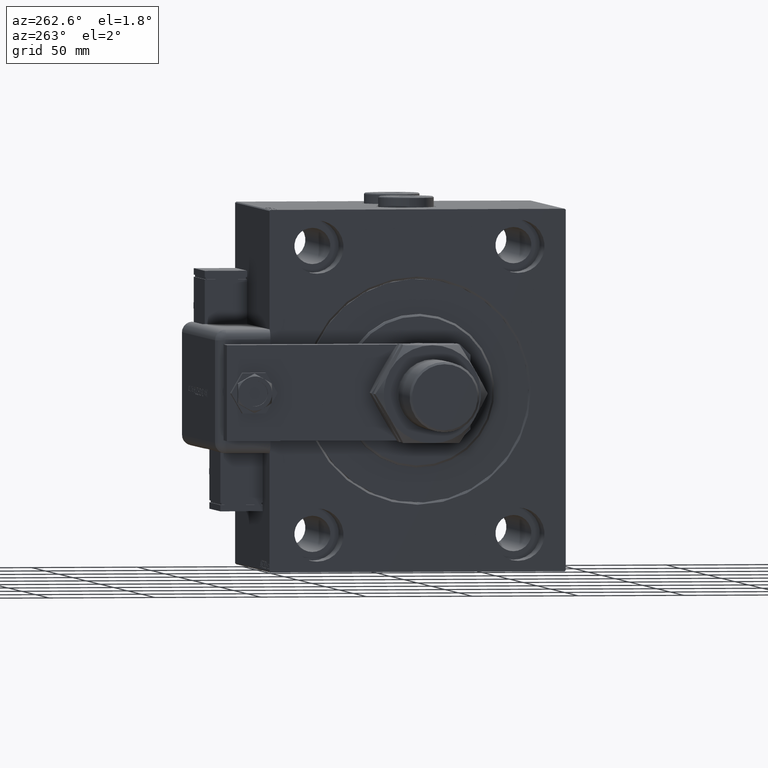
[diagram: clean part render]
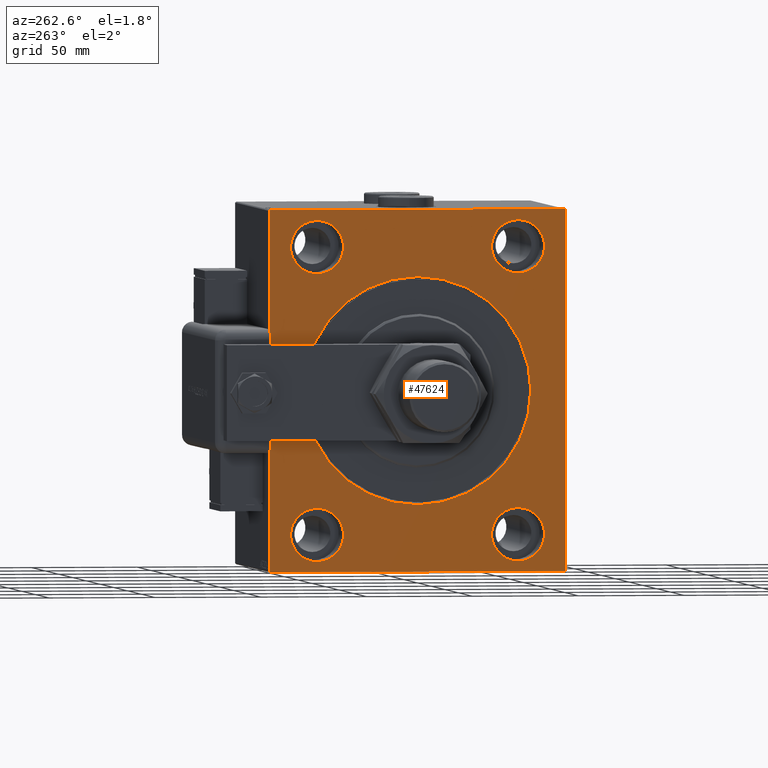
[diagram: same view with one face highlighted and labeled with its STEP entity id]
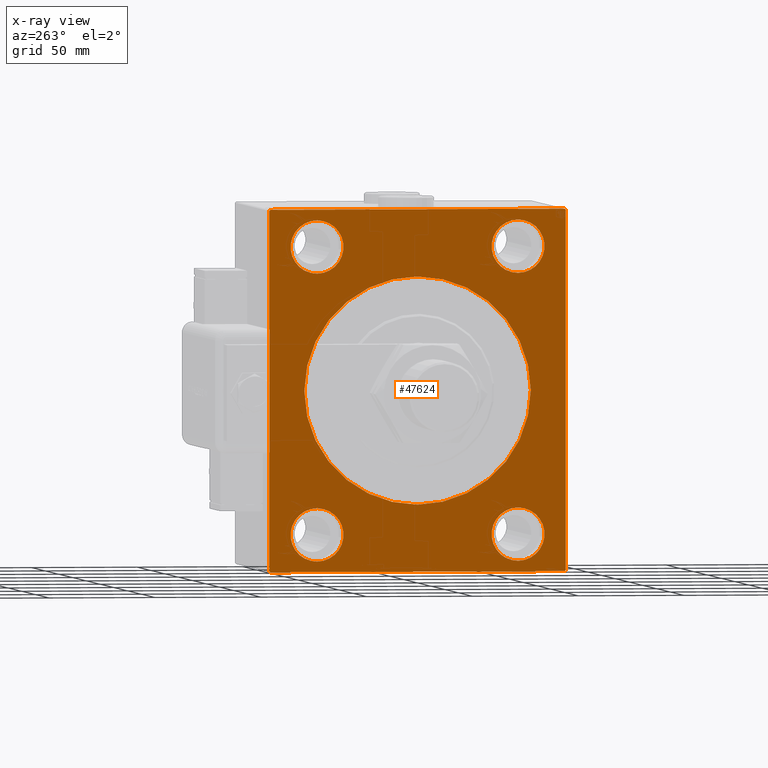
[diagram: x-ray of the same camera — body ghosted, the highlighted face saturated]
A machine part, auxiliary view. The second image highlights one B-rep face of the part: STEP entity #47624.
The next image is the same camera in x-ray: the body ghosted, the highlighted face saturated — about 0% of this face is hidden behind the body in this view.
In plain terms, the highlighted planar face has unit normal (1, 0, 0).
Its self-contained STEP definition (entity closure, byte-faithful):
#74 = ORIENTED_EDGE ( 'NONE', *, *, #38213, .F. ) ;
#1502 = VERTEX_POINT ( 'NONE', #58459 ) ;
#1839 = VERTEX_POINT ( 'NONE', #29563 ) ;
#2432 = DIRECTION ( 'NONE',  ( 0.000000000000000000, 0.000000000000000000, 1.000000000000000000 ) ) ;
#3241 = DIRECTION ( 'NONE',  ( -1.000000000000000000, 0.000000000000000000, 0.000000000000000000 ) ) ;
#3507 = DIRECTION ( 'NONE',  ( -1.000000000000000000, 0.000000000000000000, 0.000000000000000000 ) ) ;
#3883 = CIRCLE ( 'NONE', #12985, 12.49999999999999645 ) ;
#4310 = CIRCLE ( 'NONE', #34600, 12.49999999999999645 ) ;
#4846 = VERTEX_POINT ( 'NONE', #38354 ) ;
#4900 = VECTOR ( 'NONE', #54947, 1000.000000000000000 ) ;
#5613 = DIRECTION ( 'NONE',  ( -1.000000000000000000, 0.000000000000000000, 0.000000000000000000 ) ) ;
#6246 = EDGE_LOOP ( 'NONE', ( #44435, #74 ) ) ;
#6357 = AXIS2_PLACEMENT_3D ( 'NONE', #31415, #50732, #7391 ) ;
#6517 = CARTESIAN_POINT ( 'NONE',  ( 0.000000000000000000, 47.50000000000000711, -55.00000000000000711 ) ) ;
#6749 = FACE_BOUND ( 'NONE', #48213, .T. ) ;
#6808 = CARTESIAN_POINT ( 'NONE',  ( 0.000000000000000000, -47.49999999999997868, 67.50000000000000000 ) ) ;
#6834 = EDGE_CURVE ( 'NONE', #25095, #59235, #36208, .T. ) ;
#7010 = ORIENTED_EDGE ( 'NONE', *, *, #28667, .F. ) ;
#7207 = AXIS2_PLACEMENT_3D ( 'NONE', #18414, #3241, #9242 ) ;
#7391 = DIRECTION ( 'NONE',  ( 0.000000000000000000, 0.000000000000000000, -1.000000000000000000 ) ) ;
#7669 = ORIENTED_EDGE ( 'NONE', *, *, #37261, .F. ) ;
#7737 = DIRECTION ( 'NONE',  ( -1.000000000000000000, 0.000000000000000000, 0.000000000000000000 ) ) ;
#8192 = CARTESIAN_POINT ( 'NONE',  ( 0.000000000000000000, -69.49999999999994316, -85.00000000000002842 ) ) ;
#8467 = VERTEX_POINT ( 'NONE', #6517 ) ;
#8498 = VERTEX_POINT ( 'NONE', #59673 ) ;
#8855 = DIRECTION ( 'NONE',  ( 0.000000000000000000, 0.000000000000000000, -1.000000000000000000 ) ) ;
#8882 = DIRECTION ( 'NONE',  ( 0.000000000000000000, 0.000000000000000000, 1.000000000000000000 ) ) ;
#9242 = DIRECTION ( 'NONE',  ( 0.000000000000000000, 0.000000000000000000, 1.000000000000000000 ) ) ;
#9440 = VECTOR ( 'NONE', #60636, 1000.000000000000000 ) ;
#9757 = CARTESIAN_POINT ( 'NONE',  ( 0.000000000000000000, 0.000000000000000000, 0.000000000000000000 ) ) ;
#9760 = CARTESIAN_POINT ( 'NONE',  ( 0.000000000000000000, -69.99999999999998579, 84.49999999999995737 ) ) ;
#10742 = CARTESIAN_POINT ( 'NONE',  ( 0.000000000000000000, 70.00000000000002842, -85.00000000000001421 ) ) ;
#10941 = EDGE_CURVE ( 'NONE', #49741, #4846, #48939, .T. ) ;
#11497 = FACE_OUTER_BOUND ( 'NONE', #43919, .T. ) ;
#12130 = FACE_BOUND ( 'NONE', #14722, .T. ) ;
#12470 = EDGE_CURVE ( 'NONE', #45804, #38644, #61464, .T. ) ;
#12490 = DIRECTION ( 'NONE',  ( 0.000000000000000000, 0.000000000000000000, 1.000000000000000000 ) ) ;
#12774 = CARTESIAN_POINT ( 'NONE',  ( 0.000000000000000000, -47.49999999999997868, 80.00000000000001421 ) ) ;
#12879 = ORIENTED_EDGE ( 'NONE', *, *, #42880, .T. ) ;
#12985 = AXIS2_PLACEMENT_3D ( 'NONE', #59394, #60311, #2432 ) ;
#13000 = ORIENTED_EDGE ( 'NONE', *, *, #61260, .T. ) ;
#13048 = EDGE_CURVE ( 'NONE', #25095, #37301, #56321, .T. ) ;
#13282 = ORIENTED_EDGE ( 'NONE', *, *, #6834, .T. ) ;
#13313 = CARTESIAN_POINT ( 'NONE',  ( 0.000000000000000000, -47.49999999999999289, -67.50000000000000000 ) ) ;
#14722 = EDGE_LOOP ( 'NONE', ( #7010, #27793 ) ) ;
#14768 = CARTESIAN_POINT ( 'NONE',  ( 0.000000000000000000, 47.50000000000000711, 55.00000000000000000 ) ) ;
#14956 = ORIENTED_EDGE ( 'NONE', *, *, #10941, .T. ) ;
#15671 = DIRECTION ( 'NONE',  ( 0.000000000000000000, -1.000000000000000000, -9.912705577010325549E-17 ) ) ;
#15739 = CARTESIAN_POINT ( 'NONE',  ( 0.000000000000000000, 47.50000000000000711, -80.00000000000000000 ) ) ;
#16355 = CARTESIAN_POINT ( 'NONE',  ( 0.000000000000000000, -69.99999999999998579, -85.00000000000002842 ) ) ;
#16469 = VERTEX_POINT ( 'NONE', #27634 ) ;
#17108 = AXIS2_PLACEMENT_3D ( 'NONE', #37069, #31706, #60821 ) ;
#17140 = CIRCLE ( 'NONE', #46471, 12.50000000000001066 ) ;
#17737 = EDGE_CURVE ( 'NONE', #18554, #19106, #34479, .T. ) ;
#17814 = AXIS2_PLACEMENT_3D ( 'NONE', #30282, #55303, #45803 ) ;
#18158 = ORIENTED_EDGE ( 'NONE', *, *, #20335, .F. ) ;
#18414 = CARTESIAN_POINT ( 'NONE',  ( 0.000000000000000000, 47.50000000000000711, 67.50000000000000000 ) ) ;
#18554 = VERTEX_POINT ( 'NONE', #14768 ) ;
#19106 = VERTEX_POINT ( 'NONE', #49954 ) ;
#20289 = VERTEX_POINT ( 'NONE', #51604 ) ;
#20335 = EDGE_CURVE ( 'NONE', #8498, #16469, #40448, .T. ) ;
#21617 = DIRECTION ( 'NONE',  ( -0.000000000000000000, 0.7071067811865378028, -0.7071067811865573427 ) ) ;
#22291 = CARTESIAN_POINT ( 'NONE',  ( 0.000000000000000000, 47.50000000000000711, -67.50000000000000000 ) ) ;
#25095 = VERTEX_POINT ( 'NONE', #9760 ) ;
#25478 = CARTESIAN_POINT ( 'NONE',  ( 0.000000000000000000, -69.49999999999997158, 84.99999999999998579 ) ) ;
#25726 = EDGE_CURVE ( 'NONE', #8467, #44760, #4310, .T. ) ;
#26082 = DIRECTION ( 'NONE',  ( 0.000000000000000000, 0.000000000000000000, 1.000000000000000000 ) ) ;
#26170 = VECTOR ( 'NONE', #42243, 999.9999999999998863 ) ;
#27634 = CARTESIAN_POINT ( 'NONE',  ( 0.000000000000000000, -47.49999999999999289, -55.00000000000000711 ) ) ;
#27793 = ORIENTED_EDGE ( 'NONE', *, *, #17737, .F. ) ;
#28297 = CARTESIAN_POINT ( 'NONE',  ( 0.000000000000000000, -69.49999999999994316, -85.00000000000002842 ) ) ;
#28667 = EDGE_CURVE ( 'NONE', #19106, #18554, #48154, .T. ) ;
#28708 = DIRECTION ( 'NONE',  ( 0.000000000000000000, 0.000000000000000000, 1.000000000000000000 ) ) ;
#29255 = ORIENTED_EDGE ( 'NONE', *, *, #12470, .T. ) ;
#29563 = CARTESIAN_POINT ( 'NONE',  ( 0.000000000000000000, 0.000000000000000000, 53.50000000000002842 ) ) ;
#30027 = DIRECTION ( 'NONE',  ( 0.000000000000000000, -8.163404592832031500E-17, 1.000000000000000000 ) ) ;
#30282 = CARTESIAN_POINT ( 'NONE',  ( 0.000000000000000000, 47.50000000000000711, 67.50000000000000000 ) ) ;
#30408 = EDGE_CURVE ( 'NONE', #53996, #20289, #62318, .T. ) ;
#31415 = CARTESIAN_POINT ( 'NONE',  ( 0.000000000000000000, 0.000000000000000000, 0.000000000000000000 ) ) ;
#31462 = DIRECTION ( 'NONE',  ( -0.000000000000000000, 0.7071067811865474617, 0.7071067811865474617 ) ) ;
#31706 = DIRECTION ( 'NONE',  ( 1.000000000000000000, 0.000000000000000000, 0.000000000000000000 ) ) ;
#32547 = DIRECTION ( 'NONE',  ( 1.000000000000000000, 0.000000000000000000, 0.000000000000000000 ) ) ;
#32814 = EDGE_LOOP ( 'NONE', ( #12879, #43935 ) ) ;
#33166 = DIRECTION ( 'NONE',  ( 0.000000000000000000, 0.000000000000000000, -1.000000000000000000 ) ) ;
#33476 = CARTESIAN_POINT ( 'NONE',  ( 0.000000000000000000, -47.49999999999999289, -67.50000000000000000 ) ) ;
#33995 = VECTOR ( 'NONE', #30027, 1000.000000000000000 ) ;
#34128 = ORIENTED_EDGE ( 'NONE', *, *, #52989, .F. ) ;
#34345 = ORIENTED_EDGE ( 'NONE', *, *, #56207, .F. ) ;
#34404 = CIRCLE ( 'NONE', #42499, 53.50000000000002842 ) ;
#34479 = CIRCLE ( 'NONE', #7207, 12.50000000000001066 ) ;
#34600 = AXIS2_PLACEMENT_3D ( 'NONE', #22291, #7737, #26082 ) ;
#35216 = PLANE ( 'NONE',  #6357 ) ;
#35654 = LINE ( 'NONE', #16355, #9440 ) ;
#35692 = CARTESIAN_POINT ( 'NONE',  ( 0.000000000000000000, 69.49999999999998579, 85.00000000000000000 ) ) ;
#35845 = FACE_BOUND ( 'NONE', #60209, .T. ) ;
#36208 = LINE ( 'NONE', #55536, #62306 ) ;
#37069 = CARTESIAN_POINT ( 'NONE',  ( 0.000000000000000000, 0.000000000000000000, 0.000000000000000000 ) ) ;
#37261 = EDGE_CURVE ( 'NONE', #16469, #8498, #44254, .T. ) ;
#37301 = VERTEX_POINT ( 'NONE', #38847 ) ;
#37314 = CARTESIAN_POINT ( 'NONE',  ( 0.000000000000000000, -69.99999999999998579, 84.99999999999998579 ) ) ;
#38213 = EDGE_CURVE ( 'NONE', #44760, #8467, #3883, .T. ) ;
#38354 = CARTESIAN_POINT ( 'NONE',  ( 0.000000000000000000, 69.50000000000001421, -85.00000000000001421 ) ) ;
#38644 = VERTEX_POINT ( 'NONE', #38707 ) ;
#38707 = CARTESIAN_POINT ( 'NONE',  ( 0.000000000000000000, 70.00000000000001421, 84.49999999999995737 ) ) ;
#38847 = CARTESIAN_POINT ( 'NONE',  ( 0.000000000000000000, -69.99999999999998579, -84.49999999999998579 ) ) ;
#40448 = CIRCLE ( 'NONE', #41480, 12.49999999999999645 ) ;
#41291 = EDGE_CURVE ( 'NONE', #20289, #53996, #17140, .T. ) ;
#41480 = AXIS2_PLACEMENT_3D ( 'NONE', #13313, #3507, #8882 ) ;
#41484 = CARTESIAN_POINT ( 'NONE',  ( 0.000000000000000000, -47.49999999999997868, 67.50000000000000000 ) ) ;
#42243 = DIRECTION ( 'NONE',  ( -0.000000000000000000, -0.7071067811865574537, 0.7071067811865376918 ) ) ;
#42499 = AXIS2_PLACEMENT_3D ( 'NONE', #9757, #32547, #33166 ) ;
#42880 = EDGE_CURVE ( 'NONE', #1839, #1502, #34404, .T. ) ;
#43919 = EDGE_LOOP ( 'NONE', ( #48689, #13282, #61928, #29255, #34345, #14956, #34128, #13000 ) ) ;
#43935 = ORIENTED_EDGE ( 'NONE', *, *, #62261, .T. ) ;
#44185 = EDGE_CURVE ( 'NONE', #45804, #59235, #49854, .T. ) ;
#44254 = CIRCLE ( 'NONE', #60400, 12.49999999999999645 ) ;
#44435 = ORIENTED_EDGE ( 'NONE', *, *, #25726, .F. ) ;
#44760 = VERTEX_POINT ( 'NONE', #15739 ) ;
#45803 = DIRECTION ( 'NONE',  ( 0.000000000000000000, 0.000000000000000000, 1.000000000000000000 ) ) ;
#45804 = VERTEX_POINT ( 'NONE', #35692 ) ;
#46471 = AXIS2_PLACEMENT_3D ( 'NONE', #41484, #60775, #56036 ) ;
#47624 = ADVANCED_FACE ( 'NONE', ( #54867, #55487, #35845, #12130, #6749, #11497 ), #35216, .F. ) ;
#48154 = CIRCLE ( 'NONE', #17814, 12.50000000000001066 ) ;
#48213 = EDGE_LOOP ( 'NONE', ( #7669, #18158 ) ) ;
#48689 = ORIENTED_EDGE ( 'NONE', *, *, #13048, .F. ) ;
#48939 = LINE ( 'NONE', #54313, #4900 ) ;
#49544 = CARTESIAN_POINT ( 'NONE',  ( 0.000000000000000000, 70.00000000000001421, 85.00000000000000000 ) ) ;
#49741 = VERTEX_POINT ( 'NONE', #50676 ) ;
#49854 = LINE ( 'NONE', #49544, #61774 ) ;
#49954 = CARTESIAN_POINT ( 'NONE',  ( 0.000000000000000000, 47.50000000000000711, 80.00000000000001421 ) ) ;
#50676 = CARTESIAN_POINT ( 'NONE',  ( 0.000000000000000000, 70.00000000000002842, -84.50000000000004263 ) ) ;
#50732 = DIRECTION ( 'NONE',  ( 1.000000000000000000, 0.000000000000000000, 0.000000000000000000 ) ) ;
#51216 = AXIS2_PLACEMENT_3D ( 'NONE', #6808, #55542, #12490 ) ;
#51356 = CARTESIAN_POINT ( 'NONE',  ( 0.000000000000000000, 69.49999999999998579, 85.00000000000000000 ) ) ;
#51459 = VECTOR ( 'NONE', #8855, 1000.000000000000000 ) ;
#51482 = CIRCLE ( 'NONE', #17108, 53.50000000000002842 ) ;
#51604 = CARTESIAN_POINT ( 'NONE',  ( 0.000000000000000000, -47.49999999999997868, 55.00000000000000000 ) ) ;
#52989 = EDGE_CURVE ( 'NONE', #56376, #4846, #35654, .T. ) ;
#53967 = ORIENTED_EDGE ( 'NONE', *, *, #30408, .F. ) ;
#53996 = VERTEX_POINT ( 'NONE', #12774 ) ;
#54313 = CARTESIAN_POINT ( 'NONE',  ( 0.000000000000000000, 70.00000000000002842, -84.50000000000004263 ) ) ;
#54423 = LINE ( 'NONE', #10742, #33995 ) ;
#54867 = FACE_BOUND ( 'NONE', #32814, .T. ) ;
#54947 = DIRECTION ( 'NONE',  ( 0.000000000000000000, -0.7071067811865769936, -0.7071067811865181518 ) ) ;
#55303 = DIRECTION ( 'NONE',  ( -1.000000000000000000, 0.000000000000000000, 0.000000000000000000 ) ) ;
#55487 = FACE_BOUND ( 'NONE', #6246, .T. ) ;
#55536 = CARTESIAN_POINT ( 'NONE',  ( 0.000000000000000000, -69.99999999999998579, 84.49999999999995737 ) ) ;
#55542 = DIRECTION ( 'NONE',  ( -1.000000000000000000, 0.000000000000000000, 0.000000000000000000 ) ) ;
#56036 = DIRECTION ( 'NONE',  ( 0.000000000000000000, 0.000000000000000000, 1.000000000000000000 ) ) ;
#56207 = EDGE_CURVE ( 'NONE', #49741, #38644, #54423, .T. ) ;
#56321 = LINE ( 'NONE', #37314, #51459 ) ;
#56376 = VERTEX_POINT ( 'NONE', #8192 ) ;
#58459 = CARTESIAN_POINT ( 'NONE',  ( 0.000000000000000000, 6.551860375438343048E-15, -53.50000000000002842 ) ) ;
#59235 = VERTEX_POINT ( 'NONE', #25478 ) ;
#59394 = CARTESIAN_POINT ( 'NONE',  ( 0.000000000000000000, 47.50000000000000711, -67.50000000000000000 ) ) ;
#59673 = CARTESIAN_POINT ( 'NONE',  ( 0.000000000000000000, -47.49999999999999289, -80.00000000000000000 ) ) ;
#60209 = EDGE_LOOP ( 'NONE', ( #53967, #60338 ) ) ;
#60311 = DIRECTION ( 'NONE',  ( -1.000000000000000000, 0.000000000000000000, 0.000000000000000000 ) ) ;
#60338 = ORIENTED_EDGE ( 'NONE', *, *, #41291, .F. ) ;
#60400 = AXIS2_PLACEMENT_3D ( 'NONE', #33476, #5613, #28708 ) ;
#60636 = DIRECTION ( 'NONE',  ( 0.000000000000000000, 1.000000000000000000, 9.912705577010325549E-17 ) ) ;
#60775 = DIRECTION ( 'NONE',  ( -1.000000000000000000, 0.000000000000000000, 0.000000000000000000 ) ) ;
#60821 = DIRECTION ( 'NONE',  ( 0.000000000000000000, 0.000000000000000000, -1.000000000000000000 ) ) ;
#61260 = EDGE_CURVE ( 'NONE', #56376, #37301, #61855, .T. ) ;
#61464 = LINE ( 'NONE', #51356, #61478 ) ;
#61478 = VECTOR ( 'NONE', #21617, 1000.000000000000000 ) ;
#61774 = VECTOR ( 'NONE', #15671, 1000.000000000000000 ) ;
#61855 = LINE ( 'NONE', #28297, #26170 ) ;
#61928 = ORIENTED_EDGE ( 'NONE', *, *, #44185, .F. ) ;
#62261 = EDGE_CURVE ( 'NONE', #1502, #1839, #51482, .T. ) ;
#62306 = VECTOR ( 'NONE', #31462, 1000.000000000000114 ) ;
#62318 = CIRCLE ( 'NONE', #51216, 12.50000000000001066 ) ;